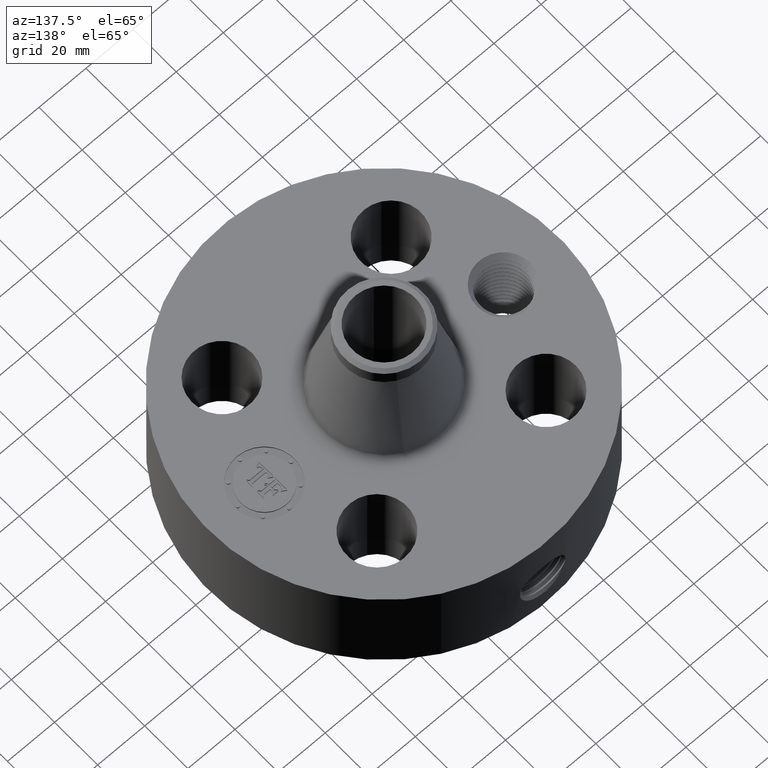
[diagram: clean part render]
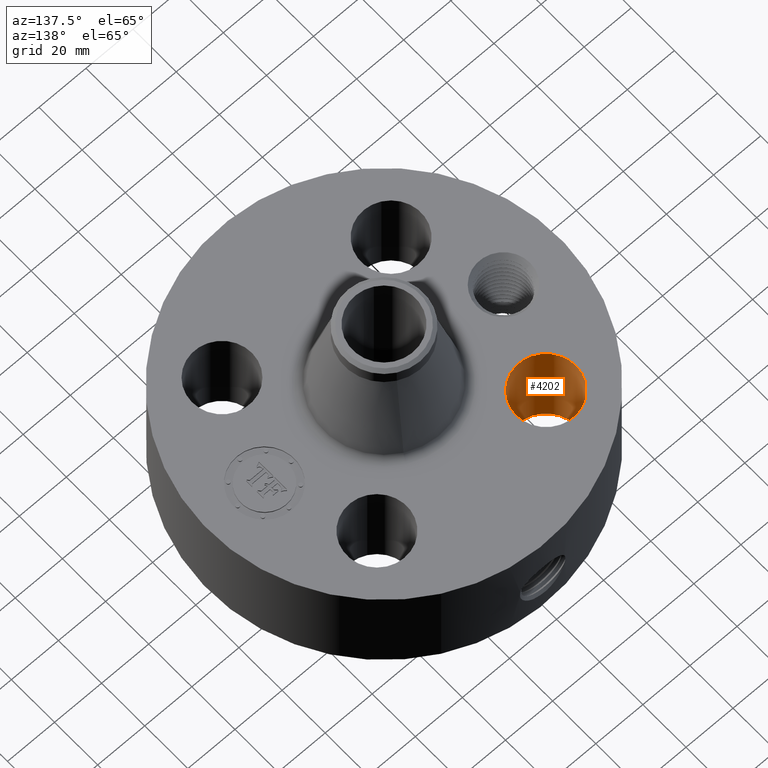
[diagram: same view with one face highlighted and labeled with its STEP entity id]
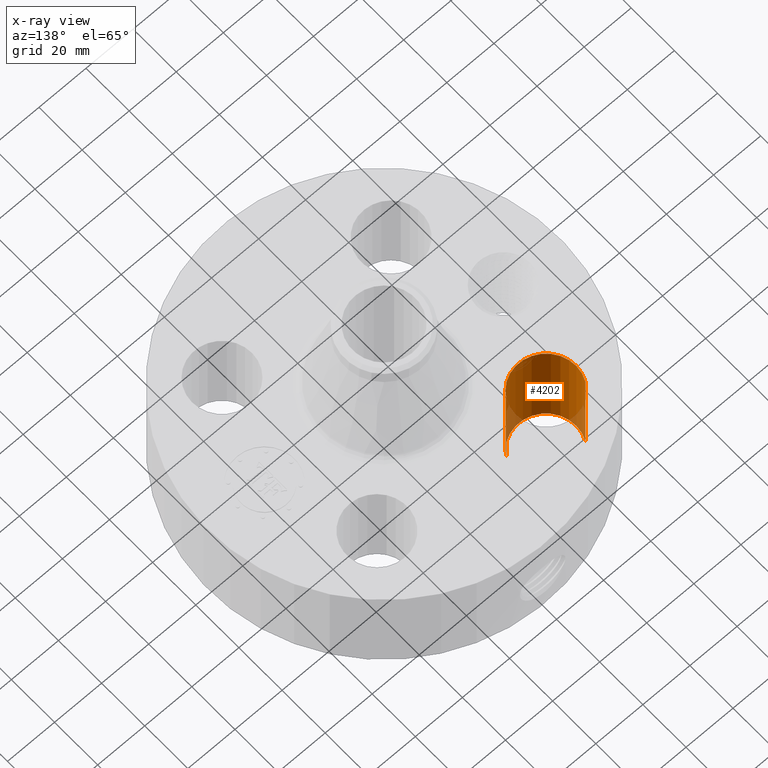
[diagram: x-ray of the same camera — body ghosted, the highlighted face saturated]
A machine part, auxiliary view. The second image highlights one B-rep face of the part: STEP entity #4202.
The next image is the same camera in x-ray: the body ghosted, the highlighted face saturated — about 11% of this face is hidden behind the body in this view.
In plain terms, the highlighted cylindrical surface (partial cylindrical patch) has radius 12.7 mm, axis along (-0, 0, -1).
Its self-contained STEP definition (entity closure, byte-faithful):
#3003=AXIS2_PLACEMENT_3D('Circle Axis2P3D',#3001,#3002,$) ;
#4175=AXIS2_PLACEMENT_3D('Cylinder Axis2P3D',#4172,#4173,#4174) ;
#4186=AXIS2_PLACEMENT_3D('Circle Axis2P3D',#4184,#4185,$) ;
#2996=CARTESIAN_POINT('Vertex',(-1.85300484333,1.65392633168,1.75000000001)) ;
#2998=CARTESIAN_POINT('Vertex',(-0.975422281432,1.17450079308,1.75000000001)) ;
#3001=CARTESIAN_POINT('Axis2P3D Location',(-1.41421356238,1.41421356238,1.75000000001)) ;
#4172=CARTESIAN_POINT('Axis2P3D Location',(-1.41421356238,1.41421356238,1.74606299213)) ;
#4177=CARTESIAN_POINT('Line Origine',(-0.975422281432,1.17450079308,0.875000000003)) ;
#4181=CARTESIAN_POINT('Vertex',(-0.975422281432,1.17450079308,0.)) ;
#4184=CARTESIAN_POINT('Axis2P3D Location',(-1.41421356238,1.41421356238,0.)) ;
#4188=CARTESIAN_POINT('Vertex',(-1.85300484333,1.65392633168,0.)) ;
#4191=CARTESIAN_POINT('Line Origine',(-1.85300484333,1.65392633168,0.875000000003)) ;
#3002=DIRECTION('Axis2P3D Direction',(0.,0.,-0.0393700787402)) ;
#4173=DIRECTION('Axis2P3D Direction',(-0.,0.,-0.0393700787402)) ;
#4174=DIRECTION('Axis2P3D XDirection',(-0.0345504945626,0.0188750212049,0.)) ;
#4178=DIRECTION('Vector Direction',(0.,0.,-0.0393700787402)) ;
#4185=DIRECTION('Axis2P3D Direction',(-0.,0.,-0.0393700787402)) ;
#4192=DIRECTION('Vector Direction',(0.,0.,-0.0393700787402)) ;
#4179=VECTOR('Line Direction',#4178,0.0393700787402) ;
#4193=VECTOR('Line Direction',#4192,0.0393700787402) ;
#4197=ORIENTED_EDGE('',*,*,#4183,.F.) ;
#4198=ORIENTED_EDGE('',*,*,#4190,.T.) ;
#4199=ORIENTED_EDGE('',*,*,#4195,.T.) ;
#4200=ORIENTED_EDGE('',*,*,#3005,.F.) ;
#4202=ADVANCED_FACE('PartBody',(#4201),#4176,.F.) ;
#3004=CIRCLE('generated circle',#3003,0.500000000002) ;
#4187=CIRCLE('generated circle',#4186,0.500000000002) ;
#4176=CYLINDRICAL_SURFACE('generated cylinder',#4175,0.500000000002) ;
#3005=EDGE_CURVE('',#2999,#2997,#3004,.T.) ;
#4183=EDGE_CURVE('',#4182,#2999,#4180,.F.) ;
#4190=EDGE_CURVE('',#4182,#4189,#4187,.T.) ;
#4195=EDGE_CURVE('',#4189,#2997,#4194,.F.) ;
#4196=EDGE_LOOP('',(#4197,#4198,#4199,#4200)) ;
#4201=FACE_OUTER_BOUND('',#4196,.T.) ;
#4180=LINE('Line',#4177,#4179) ;
#4194=LINE('Line',#4191,#4193) ;
#2997=VERTEX_POINT('',#2996) ;
#2999=VERTEX_POINT('',#2998) ;
#4182=VERTEX_POINT('',#4181) ;
#4189=VERTEX_POINT('',#4188) ;